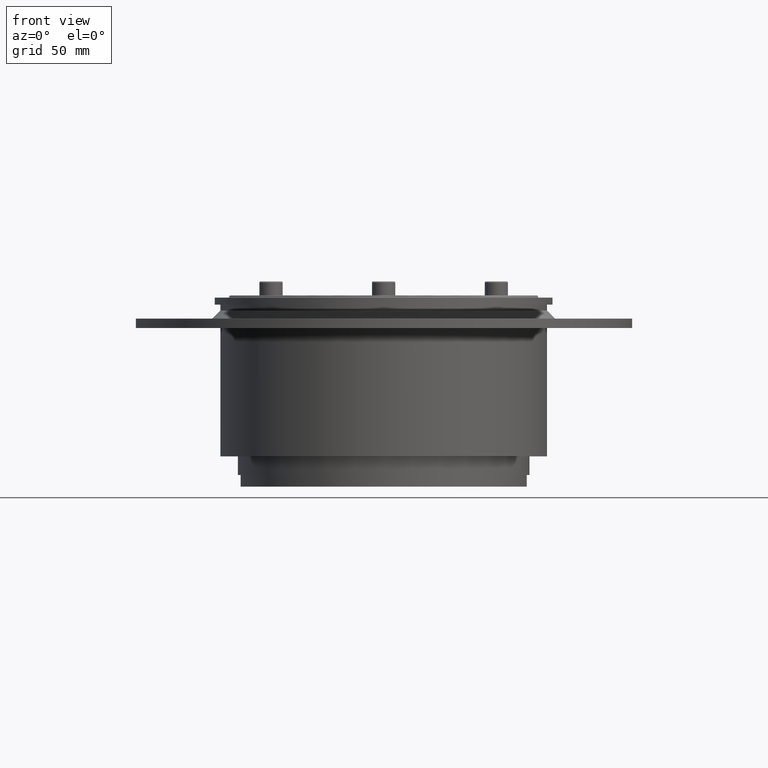
[diagram: clean part render]
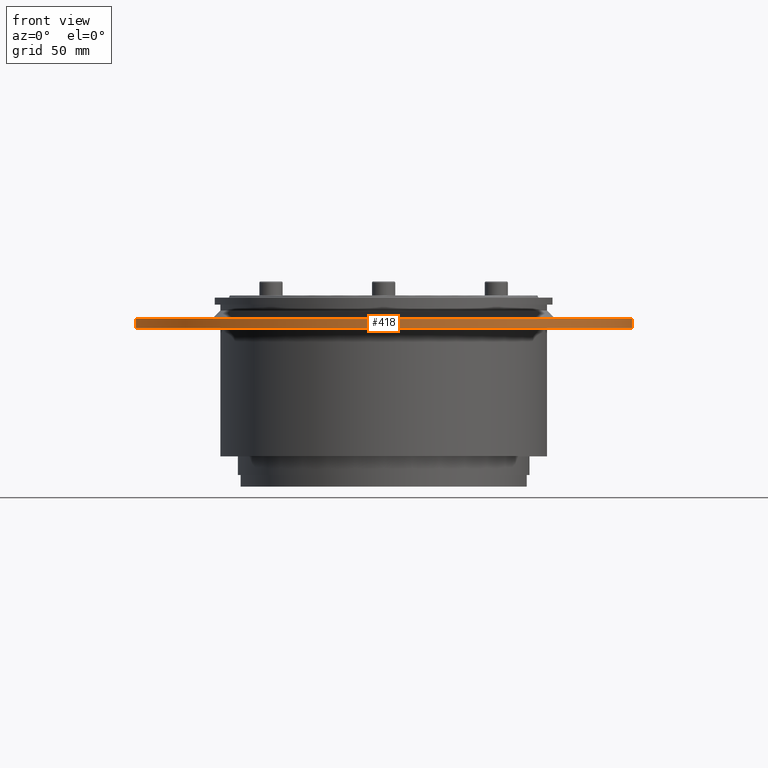
[diagram: same view with one face highlighted and labeled with its STEP entity id]
A machine part, front view. The second image highlights one B-rep face of the part: STEP entity #418.
In plain terms, the highlighted cylindrical surface (bore or boss wall) has radius 106.5 mm, axis along (0, 0, 1).
Its self-contained STEP definition (entity closure, byte-faithful):
#140=CARTESIAN_POINT('',(106.5,1.304249E-014,-6.000000000000001));
#141=VERTEX_POINT('',#140);
#142=CARTESIAN_POINT('',(0.0,0.0,-6.000000000000001));
#143=DIRECTION('',(0.0,0.0,1.0));
#144=DIRECTION('',(-1.0,0.0,0.0));
#145=AXIS2_PLACEMENT_3D('',#142,#143,#144);
#146=CIRCLE('',#145,106.5);
#147=EDGE_CURVE('',#141,#141,#146,.T.);
#366=CARTESIAN_POINT('',(106.5,1.304249E-014,-10.0));
#367=VERTEX_POINT('',#366);
#368=CARTESIAN_POINT('',(0.0,0.0,-10.0));
#369=DIRECTION('',(0.0,0.0,-1.0));
#370=DIRECTION('',(-1.0,0.0,0.0));
#371=AXIS2_PLACEMENT_3D('',#368,#369,#370);
#372=CIRCLE('',#371,106.5);
#373=EDGE_CURVE('',#367,#367,#372,.T.);
#407=CARTESIAN_POINT('',(0.0,0.0,-8.0));
#408=DIRECTION('',(0.0,0.0,1.0));
#409=DIRECTION('',(-1.0,0.0,0.0));
#410=AXIS2_PLACEMENT_3D('',#407,#408,#409);
#411=CYLINDRICAL_SURFACE('',#410,106.5);
#412=ORIENTED_EDGE('',*,*,#373,.F.);
#413=EDGE_LOOP('',(#412));
#414=FACE_OUTER_BOUND('',#413,.T.);
#415=ORIENTED_EDGE('',*,*,#147,.F.);
#416=EDGE_LOOP('',(#415));
#417=FACE_BOUND('',#416,.T.);
#418=ADVANCED_FACE('',(#414,#417),#411,.T.);